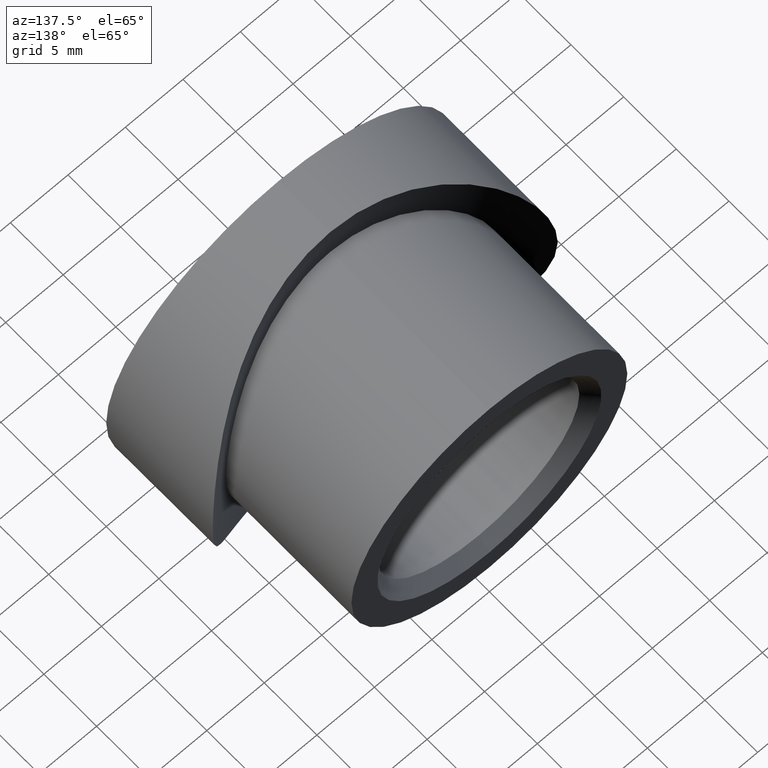
[diagram: clean part render]
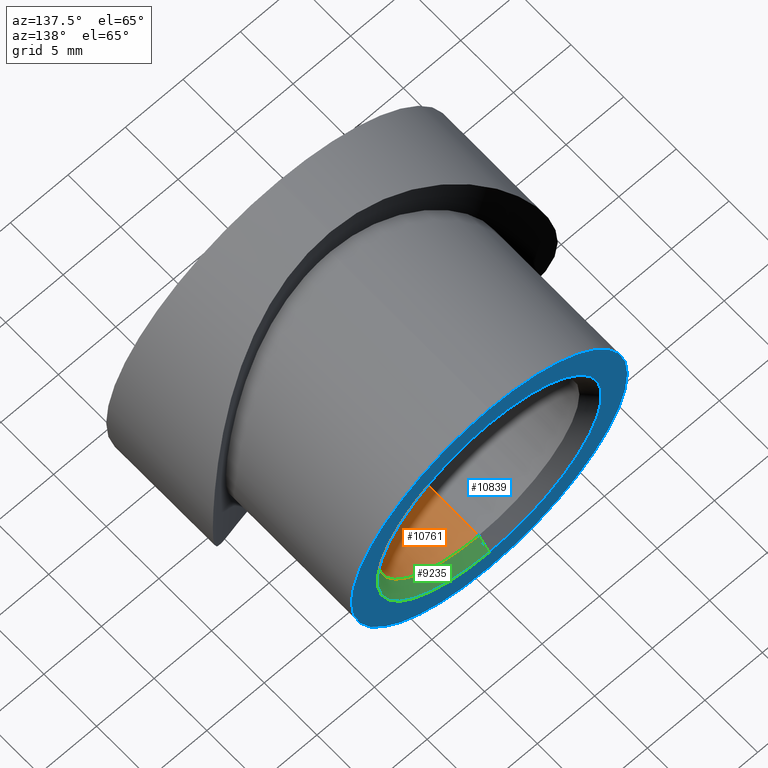
[diagram: same view with three faces highlighted in distinct colors, each labeled with its STEP entity id]
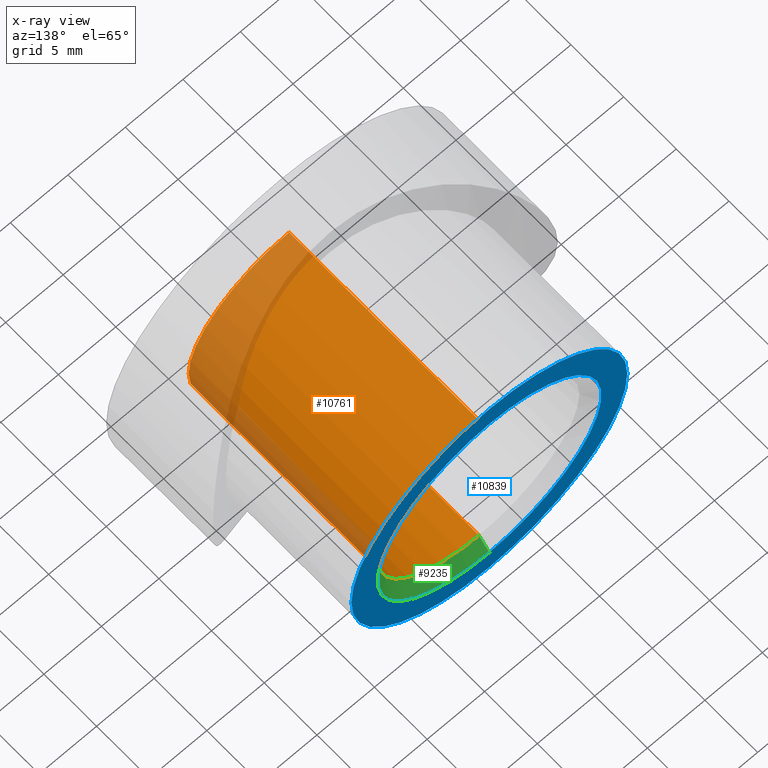
[diagram: x-ray of the same camera — body ghosted, the three highlighted faces saturated]
A machine part, auxiliary view with three faces highlighted in distinct colors.
The next image is the same camera in x-ray (body ghosted, the three faces saturated) — at least one of them is partly hidden behind the body in this view.
Their STEP definitions:

[orange] entity #10761 — the highlighted cylindrical surface (partial cylindrical patch) has radius 8.75 mm, axis along (-0, 1, -0).
#153 = EDGE_CURVE ( 'NONE', #7391, #13729, #11194, .T. ) ;
#192 = CARTESIAN_POINT ( 'NONE',  ( 0.0000000000000000000, 0.9999999999999904500, 0.0000000000000000000 ) ) ;
#809 = FACE_OUTER_BOUND ( 'NONE', #12545, .T. ) ;
#1092 = EDGE_CURVE ( 'NONE', #11868, #6006, #6975, .T. ) ;
#1382 = CARTESIAN_POINT ( 'NONE',  ( 1.071565949253932900E-015, 18.99999999999998900, -8.749999999999992900 ) ) ;
#1542 = CARTESIAN_POINT ( 'NONE',  ( 0.0000000000000000000, 20.00000000000000000, 8.749999999999992900 ) ) ;
#1758 = ORIENTED_EDGE ( 'NONE', *, *, #4669, .F. ) ;
#2080 = CYLINDRICAL_SURFACE ( 'NONE', #3874, 8.749999999999992900 ) ;
#2682 = CARTESIAN_POINT ( 'NONE',  ( 0.0000000000000000000, 18.99999999999998900, 8.749999999999992900 ) ) ;
#2756 = LINE ( 'NONE', #1542, #7081 ) ;
#3210 = ORIENTED_EDGE ( 'NONE', *, *, #153, .T. ) ;
#3874 = AXIS2_PLACEMENT_3D ( 'NONE', #12468, #14696, #10088 ) ;
#4669 = EDGE_CURVE ( 'NONE', #11868, #13729, #10404, .T. ) ;
#5307 = ORIENTED_EDGE ( 'NONE', *, *, #7075, .T. ) ;
#6006 = VERTEX_POINT ( 'NONE', #11934 ) ;
#6386 = CARTESIAN_POINT ( 'NONE',  ( 1.071565949253932900E-015, 0.9999999999999904500, -8.749999999999992900 ) ) ;
#6975 = CIRCLE ( 'NONE', #13262, 8.749999999999992900 ) ;
#7075 = EDGE_CURVE ( 'NONE', #6006, #7391, #2756, .T. ) ;
#7081 = VECTOR ( 'NONE', #13202, 1000.000000000000000 ) ;
#7391 = VERTEX_POINT ( 'NONE', #2682 ) ;
#10088 = DIRECTION ( 'NONE',  ( 0.0000000000000000000, 0.0000000000000000000, 1.000000000000000000 ) ) ;
#10404 = LINE ( 'NONE', #10967, #11321 ) ;
#10761 = ADVANCED_FACE ( 'NONE', ( #809 ), #2080, .F. ) ;
#10845 = DIRECTION ( 'NONE',  ( -0.0000000000000000000, -1.000000000000000000, -0.0000000000000000000 ) ) ;
#10967 = CARTESIAN_POINT ( 'NONE',  ( 1.071565949253932900E-015, 20.00000000000000000, -8.749999999999992900 ) ) ;
#11079 = AXIS2_PLACEMENT_3D ( 'NONE', #14855, #14951, #13704 ) ;
#11194 = CIRCLE ( 'NONE', #11079, 8.749999999999992900 ) ;
#11321 = VECTOR ( 'NONE', #14513, 1000.000000000000000 ) ;
#11868 = VERTEX_POINT ( 'NONE', #6386 ) ;
#11934 = CARTESIAN_POINT ( 'NONE',  ( 0.0000000000000000000, 0.9999999999999904500, 8.749999999999992900 ) ) ;
#12468 = CARTESIAN_POINT ( 'NONE',  ( 0.0000000000000000000, 20.00000000000000000, 0.0000000000000000000 ) ) ;
#12545 = EDGE_LOOP ( 'NONE', ( #1758, #14724, #5307, #3210 ) ) ;
#13202 = DIRECTION ( 'NONE',  ( -0.0000000000000000000, 1.000000000000000000, -0.0000000000000000000 ) ) ;
#13262 = AXIS2_PLACEMENT_3D ( 'NONE', #192, #10845, #14600 ) ;
#13704 = DIRECTION ( 'NONE',  ( 0.0000000000000000000, 0.0000000000000000000, -1.000000000000000000 ) ) ;
#13729 = VERTEX_POINT ( 'NONE', #1382 ) ;
#14513 = DIRECTION ( 'NONE',  ( -0.0000000000000000000, 1.000000000000000000, -0.0000000000000000000 ) ) ;
#14600 = DIRECTION ( 'NONE',  ( 0.0000000000000000000, 0.0000000000000000000, 1.000000000000000000 ) ) ;
#14696 = DIRECTION ( 'NONE',  ( -0.0000000000000000000, 1.000000000000000000, -0.0000000000000000000 ) ) ;
#14724 = ORIENTED_EDGE ( 'NONE', *, *, #1092, .T. ) ;
#14855 = CARTESIAN_POINT ( 'NONE',  ( 0.0000000000000000000, 18.99999999999998900, 0.0000000000000000000 ) ) ;
#14951 = DIRECTION ( 'NONE',  ( 0.0000000000000000000, 1.000000000000000000, 0.0000000000000000000 ) ) ;

[blue] entity #10839 — the highlighted planar face has unit normal (0, -1, 0).
#814 = CARTESIAN_POINT ( 'NONE',  ( 0.0000000000000000000, 20.00000000000000000, 0.0000000000000000000 ) ) ;
#850 = CARTESIAN_POINT ( 'NONE',  ( 0.0000000000000000000, 20.00000000000000000, 0.0000000000000000000 ) ) ;
#1208 = ORIENTED_EDGE ( 'NONE', *, *, #3061, .F. ) ;
#1445 = CIRCLE ( 'NONE', #7960, 12.00000000000000200 ) ;
#2024 = ORIENTED_EDGE ( 'NONE', *, *, #6160, .T. ) ;
#2055 = DIRECTION ( 'NONE',  ( 0.0000000000000000000, 0.0000000000000000000, -1.000000000000000000 ) ) ;
#2441 = ORIENTED_EDGE ( 'NONE', *, *, #8710, .F. ) ;
#2821 = CIRCLE ( 'NONE', #6698, 12.00000000000000200 ) ;
#3061 = EDGE_CURVE ( 'NONE', #13034, #11351, #2821, .T. ) ;
#3124 = VERTEX_POINT ( 'NONE', #3663 ) ;
#3233 = DIRECTION ( 'NONE',  ( 0.0000000000000000000, -1.000000000000000000, 0.0000000000000000000 ) ) ;
#3326 = CARTESIAN_POINT ( 'NONE',  ( 0.0000000000000000000, 20.00000000000000000, -12.00000000000000200 ) ) ;
#3663 = CARTESIAN_POINT ( 'NONE',  ( 1.194030629168670500E-015, 20.00000000000000000, -9.750000000000008900 ) ) ;
#4651 = AXIS2_PLACEMENT_3D ( 'NONE', #7671, #13606, #2055 ) ;
#4867 = CARTESIAN_POINT ( 'NONE',  ( 0.0000000000000000000, 20.00000000000000000, 0.0000000000000000000 ) ) ;
#4948 = AXIS2_PLACEMENT_3D ( 'NONE', #4867, #13072, #7189 ) ;
#5028 = EDGE_LOOP ( 'NONE', ( #2441, #1208 ) ) ;
#5523 = DIRECTION ( 'NONE',  ( 0.0000000000000000000, -0.0000000000000000000, -1.000000000000000000 ) ) ;
#5984 = CARTESIAN_POINT ( 'NONE',  ( 1.469576158976824100E-015, 20.00000000000000000, 12.00000000000000200 ) ) ;
#6160 = EDGE_CURVE ( 'NONE', #13534, #3124, #7003, .T. ) ;
#6535 = CIRCLE ( 'NONE', #4948, 9.750000000000008900 ) ;
#6698 = AXIS2_PLACEMENT_3D ( 'NONE', #12552, #9291, #8172 ) ;
#7003 = CIRCLE ( 'NONE', #4651, 9.750000000000008900 ) ;
#7189 = DIRECTION ( 'NONE',  ( 0.0000000000000000000, 0.0000000000000000000, -1.000000000000000000 ) ) ;
#7671 = CARTESIAN_POINT ( 'NONE',  ( 0.0000000000000000000, 20.00000000000000000, 0.0000000000000000000 ) ) ;
#7960 = AXIS2_PLACEMENT_3D ( 'NONE', #850, #3233, #12549 ) ;
#8172 = DIRECTION ( 'NONE',  ( 0.0000000000000000000, 0.0000000000000000000, -1.000000000000000000 ) ) ;
#8710 = EDGE_CURVE ( 'NONE', #11351, #13034, #1445, .T. ) ;
#8902 = CARTESIAN_POINT ( 'NONE',  ( 0.0000000000000000000, 20.00000000000000000, 9.750000000000008900 ) ) ;
#8968 = FACE_OUTER_BOUND ( 'NONE', #5028, .T. ) ;
#9291 = DIRECTION ( 'NONE',  ( 0.0000000000000000000, -1.000000000000000000, 0.0000000000000000000 ) ) ;
#9850 = EDGE_CURVE ( 'NONE', #3124, #13534, #6535, .T. ) ;
#9885 = AXIS2_PLACEMENT_3D ( 'NONE', #814, #11255, #5523 ) ;
#10451 = ORIENTED_EDGE ( 'NONE', *, *, #9850, .T. ) ;
#10839 = ADVANCED_FACE ( 'NONE', ( #13682, #8968 ), #13635, .F. ) ;
#11255 = DIRECTION ( 'NONE',  ( 0.0000000000000000000, -1.000000000000000000, 0.0000000000000000000 ) ) ;
#11351 = VERTEX_POINT ( 'NONE', #3326 ) ;
#12549 = DIRECTION ( 'NONE',  ( 0.0000000000000000000, 0.0000000000000000000, -1.000000000000000000 ) ) ;
#12552 = CARTESIAN_POINT ( 'NONE',  ( 0.0000000000000000000, 20.00000000000000000, 0.0000000000000000000 ) ) ;
#13034 = VERTEX_POINT ( 'NONE', #5984 ) ;
#13072 = DIRECTION ( 'NONE',  ( 0.0000000000000000000, -1.000000000000000000, 0.0000000000000000000 ) ) ;
#13293 = EDGE_LOOP ( 'NONE', ( #2024, #10451 ) ) ;
#13534 = VERTEX_POINT ( 'NONE', #8902 ) ;
#13606 = DIRECTION ( 'NONE',  ( 0.0000000000000000000, -1.000000000000000000, 0.0000000000000000000 ) ) ;
#13635 = PLANE ( 'NONE',  #9885 ) ;
#13682 = FACE_BOUND ( 'NONE', #13293, .T. ) ;

[green] entity #9235 — the highlighted conical surface has half-angle 45 deg.
#23 = ORIENTED_EDGE ( 'NONE', *, *, #153, .F. ) ;
#98 = VECTOR ( 'NONE', #7101, 1000.000000000000000 ) ;
#153 = EDGE_CURVE ( 'NONE', #7391, #13729, #11194, .T. ) ;
#749 = EDGE_CURVE ( 'NONE', #13729, #3124, #8633, .T. ) ;
#878 = CARTESIAN_POINT ( 'NONE',  ( 0.0000000000000000000, 18.99999999999998900, 0.0000000000000000000 ) ) ;
#1382 = CARTESIAN_POINT ( 'NONE',  ( 1.071565949253932900E-015, 18.99999999999998900, -8.749999999999992900 ) ) ;
#1639 = ORIENTED_EDGE ( 'NONE', *, *, #5058, .T. ) ;
#2415 = LINE ( 'NONE', #11909, #14404 ) ;
#2682 = CARTESIAN_POINT ( 'NONE',  ( 0.0000000000000000000, 18.99999999999998900, 8.749999999999992900 ) ) ;
#3124 = VERTEX_POINT ( 'NONE', #3663 ) ;
#3213 = DIRECTION ( 'NONE',  ( 0.0000000000000000000, 0.0000000000000000000, 1.000000000000000000 ) ) ;
#3663 = CARTESIAN_POINT ( 'NONE',  ( 1.194030629168670500E-015, 20.00000000000000000, -9.750000000000008900 ) ) ;
#4000 = CONICAL_SURFACE ( 'NONE', #6972, 8.749999999999992900, 0.7853981633974509400 ) ;
#4867 = CARTESIAN_POINT ( 'NONE',  ( 0.0000000000000000000, 20.00000000000000000, 0.0000000000000000000 ) ) ;
#4948 = AXIS2_PLACEMENT_3D ( 'NONE', #4867, #13072, #7189 ) ;
#5058 = EDGE_CURVE ( 'NONE', #7391, #13534, #2415, .T. ) ;
#5799 = EDGE_LOOP ( 'NONE', ( #6841, #23, #1639, #9312 ) ) ;
#6535 = CIRCLE ( 'NONE', #4948, 9.750000000000008900 ) ;
#6841 = ORIENTED_EDGE ( 'NONE', *, *, #749, .F. ) ;
#6972 = AXIS2_PLACEMENT_3D ( 'NONE', #878, #9082, #3213 ) ;
#7031 = DIRECTION ( 'NONE',  ( 0.0000000000000000000, 0.7071067811865456900, 0.7071067811865493500 ) ) ;
#7101 = DIRECTION ( 'NONE',  ( 8.659560562354953800E-017, 0.7071067811865456900, -0.7071067811865493500 ) ) ;
#7189 = DIRECTION ( 'NONE',  ( 0.0000000000000000000, 0.0000000000000000000, -1.000000000000000000 ) ) ;
#7391 = VERTEX_POINT ( 'NONE', #2682 ) ;
#8125 = CARTESIAN_POINT ( 'NONE',  ( 1.071565949253932900E-015, 18.99999999999998900, -8.749999999999992900 ) ) ;
#8633 = LINE ( 'NONE', #8125, #98 ) ;
#8902 = CARTESIAN_POINT ( 'NONE',  ( 0.0000000000000000000, 20.00000000000000000, 9.750000000000008900 ) ) ;
#9082 = DIRECTION ( 'NONE',  ( 0.0000000000000000000, 1.000000000000000000, 0.0000000000000000000 ) ) ;
#9235 = ADVANCED_FACE ( 'NONE', ( #9254 ), #4000, .F. ) ;
#9254 = FACE_OUTER_BOUND ( 'NONE', #5799, .T. ) ;
#9312 = ORIENTED_EDGE ( 'NONE', *, *, #9850, .F. ) ;
#9850 = EDGE_CURVE ( 'NONE', #3124, #13534, #6535, .T. ) ;
#11079 = AXIS2_PLACEMENT_3D ( 'NONE', #14855, #14951, #13704 ) ;
#11194 = CIRCLE ( 'NONE', #11079, 8.749999999999992900 ) ;
#11909 = CARTESIAN_POINT ( 'NONE',  ( 0.0000000000000000000, 18.99999999999998900, 8.749999999999992900 ) ) ;
#13072 = DIRECTION ( 'NONE',  ( 0.0000000000000000000, -1.000000000000000000, 0.0000000000000000000 ) ) ;
#13534 = VERTEX_POINT ( 'NONE', #8902 ) ;
#13704 = DIRECTION ( 'NONE',  ( 0.0000000000000000000, 0.0000000000000000000, -1.000000000000000000 ) ) ;
#13729 = VERTEX_POINT ( 'NONE', #1382 ) ;
#14404 = VECTOR ( 'NONE', #7031, 1000.000000000000000 ) ;
#14855 = CARTESIAN_POINT ( 'NONE',  ( 0.0000000000000000000, 18.99999999999998900, 0.0000000000000000000 ) ) ;
#14951 = DIRECTION ( 'NONE',  ( 0.0000000000000000000, 1.000000000000000000, 0.0000000000000000000 ) ) ;